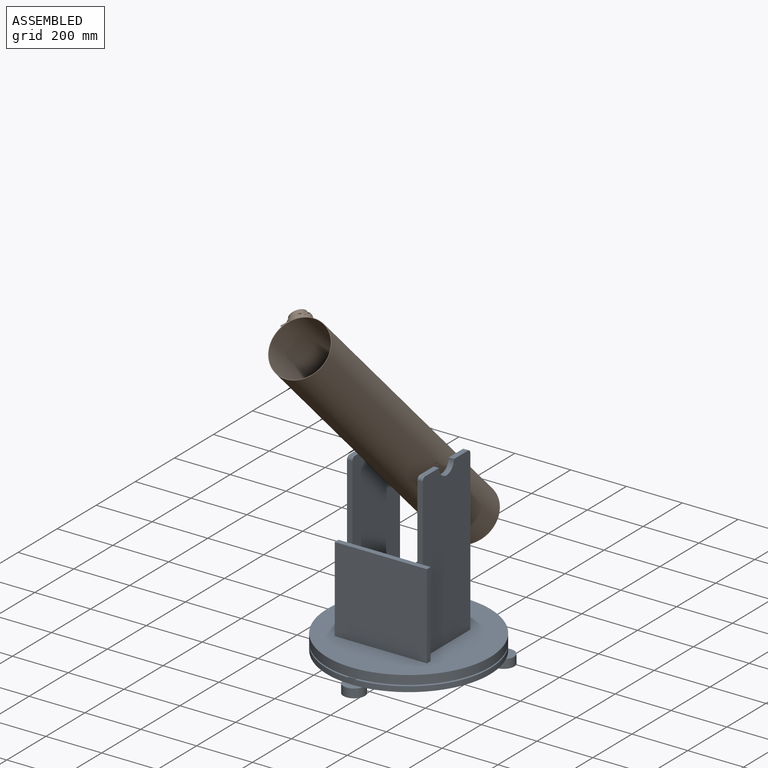
[diagram: assembled view]
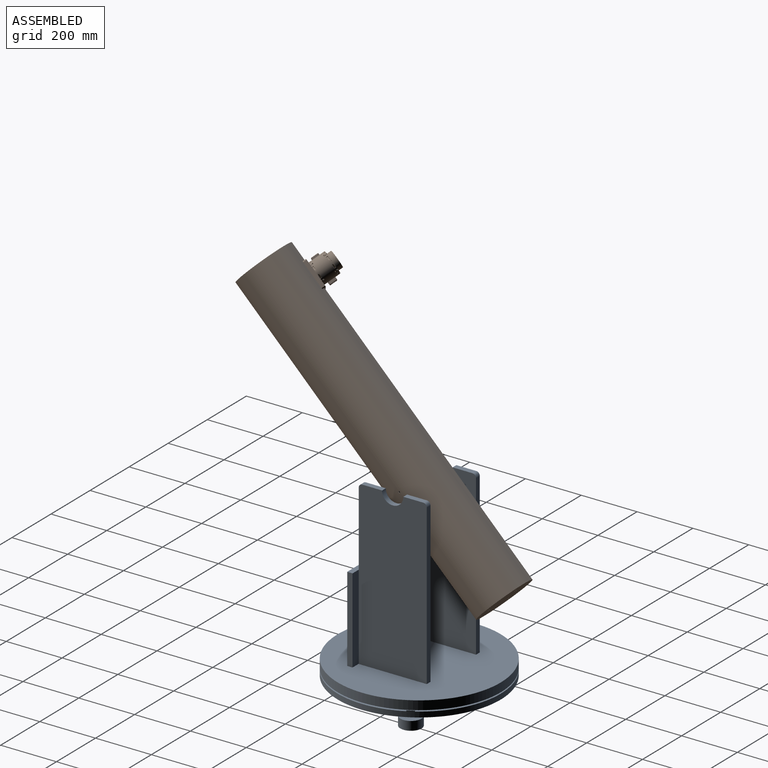
[diagram: assembled view, second angle]
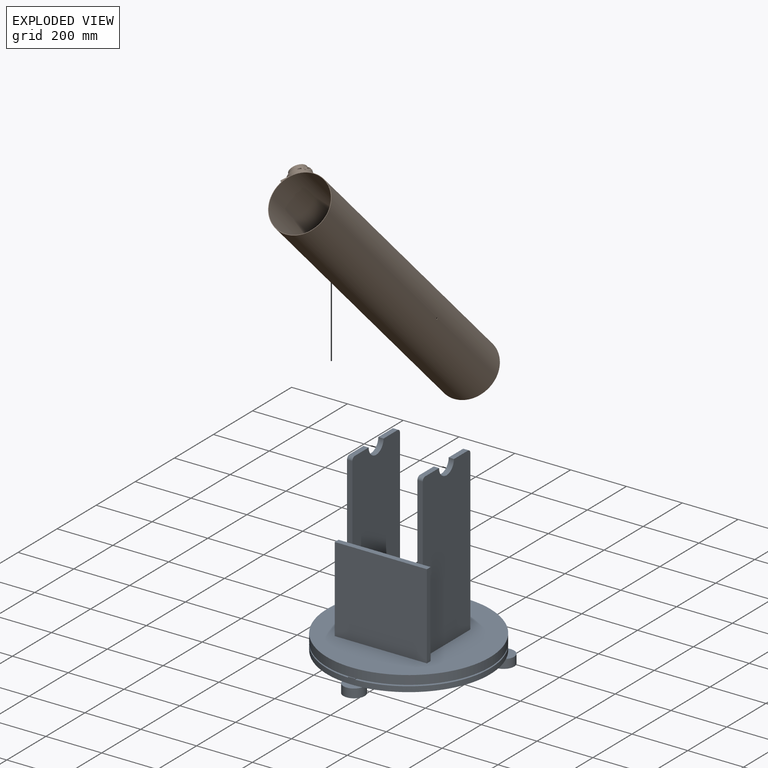
[diagram: exploded view]
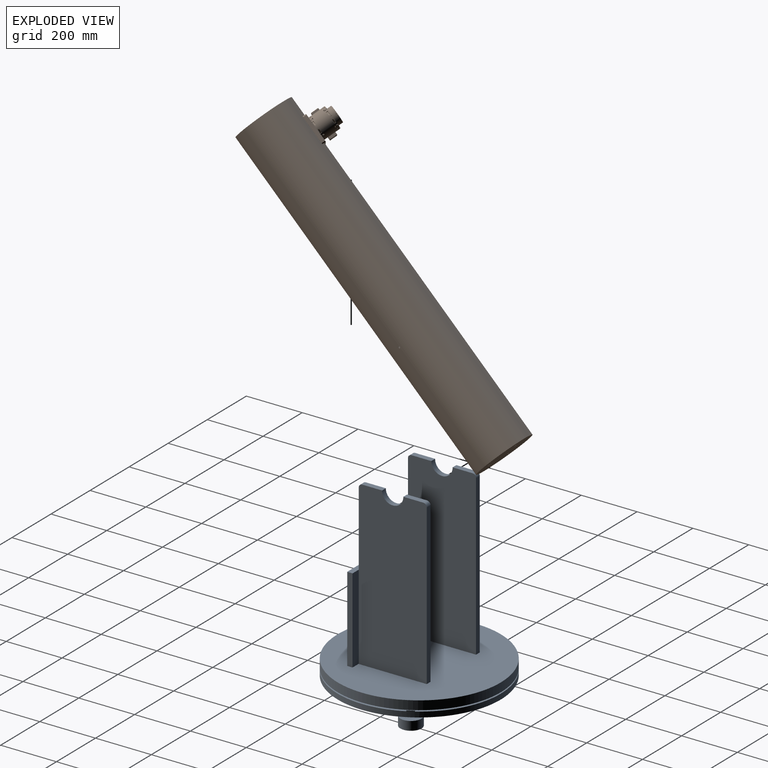
[diagram: exploded view, second angle]
FCSTD DOCUMENT  (FreeCAD 1.0R39109 (Git))
Label: SMAS_DOB_6inch
License: All rights reserved
LicenseURL: http://en.wikipedia.org/wiki/All_rights_reserved
objects: Sketcher::SketchObject×12, PartDesign::Pad×10, Part::Feature×10, PartDesign::Body×9, App::Part×3, PartDesign::Pocket×2, App::Link×2, Spreadsheet::Sheet×1, App::FeaturePython×1, Assembly::JointGroup×1, Assembly::AssemblyObject×1, PartDesign::Fillet×1, PartDesign::FeatureBase×1
note: 84 computed .brp shape members not serialized (recipe doc carries the construction recipe); baked Part::Feature solids carry a one-line shape summary decoded from their .brp

FEATURE [Sketcher::SketchObject] Sketch
  ArcFitTolerance = 1e-06
  AttachmentSupport = -> [XY_Plane001]
  FullyConstrained = true
  MakeInternals = false
  MapMode = 5
  expr: Constraints[2] = <<Spreadsheet_OTA_Dob>>.OD
  expr: Constraints[3] = <<Spreadsheet_OTA_Dob>>.ID
  sketch-geometry (2):
    g0: Circle CenterX=0 CenterY=0 CenterZ=0 NormalX=0 NormalY=0 NormalZ=1 AngleXU=0 Radius=101.6
    g1: Circle CenterX=0 CenterY=0 CenterZ=0 NormalX=0 NormalY=0 NormalZ=1 AngleXU=0 Radius=100.012
  constraints (4):
    c: Coincident(g0,g-1)
    c: Coincident(g1,g0)
    c: Diameter(g0) = 203.2
    c: Diameter(g1) = 200.025
FEATURE [PartDesign::Pad] Pad  label="Pad_Tube"
  Direction = (0,0,1)
  Length = 1219.2
  Length2 = 10
  Profile = -> Sketch
  ReferenceAxis = -> Sketch [N_Axis]
  Suppressed = false
  Type = 0
  expr: Length = <<Spreadsheet_OTA_Dob>>.Length
FEATURE [Spreadsheet::Sheet] Spreadsheet  label="Spreadsheet_OTA_Dob"
  cells = A2='Optical Tube Assembly; E2='Base Assembly; A3='See:  https://stellafane.org/tm/dob/mount/rockerbox.html; A5='Length; B5(Length)==48 "; E5='GroundBoardDiameter; F5(GroundBoardDiameter)==23 "; A6='OD; B6(OD)==8 "; E6='GroundBoardThickness; F6(GroundBoardThickness)==0.75 "; A7='TubeThickness; B7(TubeThickness)==0.125 "; E7='FeetDiamter; F7(FeetDiamter)==3 "; A8='ID; B8(ID)==B6 - B7; E8='FeetThickness; F8(FeetThickness)==1.25 "; A9='LengthToPiviot; B9(LengthToPiviot)==17 "; E9='FeetCircleDiamater; F9(FeetCircleDiamater)==F5 - 1 "; A10='PivotHoleDiameter; B10(PivotHoleDiameter)==0.25 "; A12='MirrorTailgateThickness; B12(MirrorTailgateThickness)==0.75 "; A13='MirrorTailgateHole; B13(MirrorTailgateHole)==0.375 "; A14='MirrorCellThickness; B14(MirrorCellThickness)==0.75 "; E15='CenterHoleDiameter; F15(CenterHoleDiameter)==0.5 "; A16='Mirror Diameter; B16(Mirror_Diameter)==6 "; A17='MirrorThickness; B17(MirrorThickness)==0.75 "; E17='RockerSideHeight; F17(RockerSideHeight)==23 "; G17='guess to clear 17"; E18='RockerSideWidth; F18(RockerSideWidth)==1.2 * B6; G18='120% tube diamater; A19='CellMountDiameter; B19(CellMountDiameter)==0.75 * B16; C19='75% mirror diameter; E19='RockerSideThickness; F19(RockerSideThickness)==0.75 "; A20='CellMountHoleDiameter; B20(CellMountHoleDiameter)==0.25 "; E20='AltitudeBeringCradelDiamter; F20(AltitudeBeringCradelDiamter)==1.5 "; A21='CellScrewDiamter; B21(CellScrewDiamter)==0.25 "; A22='CellScrewHeadDiameter; B22(CellScrewHeadDiameter)==0.5 "; E22='RockerBottomDiamter; F22(RockerBottomDiamter)==F5; G22='Same as ground board.; A23='CellScrewHeadPocketDepth; B23(CellScrewHeadPocketDepth)==0.125 "; E23='RockerBottomThickness; F23(RockerBottomThickness)==F8; E25='RockerBoxFrontHeight; F25(RockerBoxFrontHeight)==12 "; E26='RockerBoxFrontWidth; F26(RockerBoxFrontWidth)==13 "; E27='RockerBoxFrontThickness; F27(RockerBoxFrontThickness)==F6
FEATURE [Sketcher::SketchObject] Sketch001
  ArcFitTolerance = 1e-06
  AttachmentSupport = -> [XY_Plane002]
  FullyConstrained = true
  MakeInternals = false
  MapMode = 5
  expr: Constraints[12] = <<Spreadsheet_OTA_Dob>>.CellMountDiameter
  expr: Constraints[16] = <<Spreadsheet_OTA_Dob>>.MirrorTailgateHole
  expr: Constraints[1] = <<Spreadsheet_OTA_Dob>>.ID
  sketch-geometry (8):
    g0: Circle CenterX=0 CenterY=0 CenterZ=0 NormalX=0 NormalY=0 NormalZ=1 AngleXU=0 Radius=100.012
    g1: LineSegment [constr] StartX=49.4934 StartY=-28.575 StartZ=0 EndX=-7.1e-15 EndY=57.15 EndZ=0
    g2: LineSegment [constr] StartX=-7.1e-15 StartY=57.15 StartZ=0 EndX=-49.4934 EndY=-28.575 EndZ=0
    g3: LineSegment [constr] StartX=-49.4934 StartY=-28.575 StartZ=0 EndX=49.4934 EndY=-28.575 EndZ=0
    g4: Circle [constr] CenterX=0 CenterY=0 CenterZ=0 NormalX=0 NormalY=0 NormalZ=1 AngleXU=0 Radius=57.15
    g5: Circle CenterX=-7.1e-15 CenterY=57.15 CenterZ=0 NormalX=0 NormalY=0 NormalZ=1 AngleXU=0 Radius=4.7625
    g6: Circle CenterX=-49.4934 CenterY=-28.575 CenterZ=0 NormalX=0 NormalY=0 NormalZ=1 AngleXU=0 Radius=4.7625
    g7: Circle CenterX=49.4934 CenterY=-28.575 CenterZ=0 NormalX=0 NormalY=0 NormalZ=1 AngleXU=0 Radius=4.7625
  constraints (19):
    c: Coincident(g0,g-1)
    c: Diameter(g0) = 200.025
    c: Coincident(g1,g2)
    c: Coincident(g2,g3)
    c: Coincident(g3,g1)
    c: Equal(g1,g2)
    c: Equal(g1,g3)
    c: PointOnObject(g1,g4)
    c: PointOnObject(g2,g4)
    c: PointOnObject(g3,g4)
    c: Coincident(g4,g0)
    c: Horizontal(g3)
    c: Diameter(g4) = 114.3
    c: Coincident(g5,g1)
    c: Coincident(g6,g2)
    c: Coincident(g7,g1)
    c: Diameter(g5) = 9.525
    c: Equal(g6,g7)
    c: Equal(g7,g5)
FEATURE [PartDesign::Pad] Pad001  label="Pad_MirrorTailgate"
  Direction = (0,0,1)
  Length = 19.05
  Length2 = 10
  Profile = -> Sketch001
  ReferenceAxis = -> Sketch001 [N_Axis]
  Suppressed = false
  Type = 0
  expr: Length = <<Spreadsheet_OTA_Dob>>.MirrorTailgateThickness
FEATURE [PartDesign::Body] Body001  label="Body_MirrorTailgate"
  AllowCompound = false
  Group = -> [Sketch001,Pad001]
  Origin = -> Origin002
  Tip = -> Pad001
FEATURE [Part::Feature] Part__Feature  label="Cso"
  Placement = pos=(26.5902,26.5142,58.6525) rot=(0,0,1;0rad)
  shape: bbox 60 x 75 x 60 mm, 10 faces (baked)
FEATURE [Part::Feature] Part__Feature001  label="Haz"
  Placement = pos=(26.5902,24.9363,58.6525) rot=(0,0,1;0rad)
  shape: bbox 82.85 x 60 x 85.71 mm, 92 faces (baked)
FEATURE [Part::Feature] Part__Feature002  label="radial ball bearing_68_din_DIN 625 - 638_5 - 10,SI,NC,10_68"
  Placement = pos=(51.6925,79.4363,83.7548) rot=(0.226947,0.805172,0.547899;3.78542rad)
  shape: bbox 11.24 x 11.08 x 11.24 mm, 28 faces (baked)
FEATURE [Part::Feature] Part__Feature003  label="radial ball bearing_68_din_DIN 625 - 638_5 - 10,SI,NC,10_069"
  Placement = pos=(51.6925,28.4363,83.7548) rot=(-0.20924,0.837282,-0.505151;3.80926rad)
  shape: bbox 11.45 x 11.37 x 11.45 mm, 28 faces (baked)
FEATURE [Part::Feature] Part__Feature004  label="radial ball bearing_68_din_DIN 625 - 638_5 - 10,SI,NC,10_070"
  Placement = pos=(51.6925,79.4363,33.5502) rot=(0.826176,-0.447574,0.342213;1.49341rad)
  shape: bbox 11.53 x 11.49 x 11.53 mm, 28 faces (baked)
FEATURE [Part::Feature] Part__Feature005  label="radial ball bearing_68_din_DIN 625 - 638_5 - 10,SI,NC,10_071"
  Placement = pos=(51.6925,28.4363,33.5502) rot=(0,-1,0;0.785398rad)
  shape: bbox 11.83 x 11.91 x 11.83 mm, 28 faces (baked)
FEATURE [Part::Feature] Part__Feature006  label="tengely_haz"
  Placement = pos=(-4.60977,54.9363,58.6525) rot=(-1,0,0;1.5708rad)
  shape: bbox 29 x 26 x 97 mm, 86 faces (baked)
FEATURE [Part::Feature] Part__Feature007  label="szorito"
  Placement = pos=(-17.1098,54.9363,58.6525) rot=(0.57735,0.57735,-0.57735;2.0944rad)
  shape: bbox 11.18 x 15 x 26 mm, 17 faces (baked)
FEATURE [Part::Feature] Part__Feature008  label="radial ball bearing_68_din_DIN 625 - 624 - 8,SI,NC,8_68"
  Placement = pos=(-4.60977,54.9363,94.6525) rot=(0.261628,-0.929033,0.261628;1.64434rad)
  shape: bbox 13.68 x 13.68 x 5 mm, 28 faces (baked)
FEATURE [Part::Feature] Part__Feature009  label="talp"
  Placement = pos=(26.5902,12.3481,8.65252) rot=(1,0,0;1.5708rad)
  shape: bbox 100 x 12.59 x 100 mm, 52 faces (baked)
FEATURE [App::Part] Newton_telescope_focuser
  Group = -> [Part__Feature,Part__Feature001,Part__Feature002,Part__Feature003,Part__Feature004,Part__Feature005,Part__Feature006,Part__Feature007,Part__Feature008,Part__Feature009]
  Origin = -> Origin003
  Placement = pos=(-75.158,37.4809,1043.69) rot=(0,0,1;0.785398rad)
FEATURE [Sketcher::SketchObject] Sketch002
  ArcFitTolerance = 1e-06
  AttachmentSupport = -> [XY_Plane004]
  FullyConstrained = true
  MakeInternals = false
  MapMode = 5
  expr: Constraints[1] = <<Spreadsheet_OTA_Dob>>.Mirror_Diameter
  sketch-geometry (1):
    g0: Circle CenterX=0 CenterY=0 CenterZ=0 NormalX=0 NormalY=0 NormalZ=1 AngleXU=0 Radius=76.2
  constraints (2):
    c: Coincident(g0,g-1)
    c: Diameter(g0) = 152.4
FEATURE [PartDesign::Pad] Pad002
  Direction = (0,0,1)
  Length = 19.05
  Length2 = 10
  Profile = -> Sketch002
  ReferenceAxis = -> Sketch002 [N_Axis]
  Suppressed = false
  Type = 0
  expr: Length = <<Spreadsheet_OTA_Dob>>.MirrorThickness
FEATURE [PartDesign::Body] Body002  label="Body_Mirror"
  AllowCompound = false
  Group = -> [Sketch002,Pad002]
  Origin = -> Origin004
  Placement = pos=(0,0,63.246) rot=(0,0,1;0rad)
  Tip = -> Pad002
FEATURE [Sketcher::SketchObject] Sketch003
  ArcFitTolerance = 1e-06
  AttachmentSupport = -> [XY_Plane006]
  FullyConstrained = true
  MakeInternals = false
  MapMode = 5
  expr: Constraints[1] = <<Spreadsheet_OTA_Dob>>.GroundBoardDiameter
  expr: Constraints[3] = <<Spreadsheet_OTA_Dob>>.CenterHoleDiameter
  sketch-geometry (2):
    g0: Circle CenterX=0 CenterY=0 CenterZ=0 NormalX=0 NormalY=0 NormalZ=1 AngleXU=0 Radius=292.1
    g1: Circle CenterX=0 CenterY=0 CenterZ=0 NormalX=0 NormalY=0 NormalZ=1 AngleXU=0 Radius=6.35
  constraints (4):
    c: Coincident(g0,g-1)
    c: Diameter(g0) = 584.2
    c: Coincident(g1,g0)
    c: Diameter(g1) = 12.7
FEATURE [PartDesign::Pad] Pad003  label="PadGroundBoard"
  Direction = (0,0,1)
  Length = 19.05
  Length2 = 10
  Profile = -> Sketch003
  ReferenceAxis = -> Sketch003 [N_Axis]
  Suppressed = false
  Type = 0
  expr: Length = <<Spreadsheet_OTA_Dob>>.GroundBoardThickness
FEATURE [Sketcher::SketchObject] Sketch004
  ArcFitTolerance = 1e-06
  AttachmentSupport = -> [Pad003]
  FullyConstrained = true
  MakeInternals = false
  MapMode = 5
  Placement = pos=(0,0,0) rot=(1,0,0;3.14159rad)
  expr: Constraints[14] = <<Spreadsheet_OTA_Dob>>.FeetDiamter
  expr: Constraints[9] = Spreadsheet.FeetCircleDiamater
  sketch-geometry (7):
    g0: LineSegment [constr] StartX=-241.967 StartY=-139.7 StartZ=0 EndX=241.967 EndY=-139.7 EndZ=0
    g1: LineSegment [constr] StartX=241.967 StartY=-139.7 StartZ=0 EndX=0 EndY=279.4 EndZ=0
    g2: LineSegment [constr] StartX=0 StartY=279.4 StartZ=0 EndX=-241.967 EndY=-139.7 EndZ=0
    g3: Circle [constr] CenterX=0 CenterY=0 CenterZ=0 NormalX=0 NormalY=0 NormalZ=1 AngleXU=0 Radius=279.4
    g4: Circle CenterX=0 CenterY=279.4 CenterZ=0 NormalX=0 NormalY=0 NormalZ=1 AngleXU=0 Radius=38.1
    g5: Circle CenterX=241.967 CenterY=-139.7 CenterZ=0 NormalX=0 NormalY=0 NormalZ=1 AngleXU=0 Radius=38.1
    g6: Circle CenterX=-241.967 CenterY=-139.7 CenterZ=0 NormalX=0 NormalY=0 NormalZ=1 AngleXU=0 Radius=38.1
  constraints (17):
    c: Coincident(g0,g1)
    c: Coincident(g1,g2)
    c: Coincident(g2,g0)
    c: Equal(g0,g1)
    c: Equal(g0,g2)
    c: PointOnObject(g0,g3)
    c: PointOnObject(g1,g3)
    c: PointOnObject(g2,g3)
    c: Coincident(g3,g-1)
    c: Diameter(g3) = 558.8
    c: Horizontal(g0)
    c: Coincident(g4,g1)
    c: Coincident(g5,g0)
    c: Coincident(g6,g0)
    c: Diameter(g4) = 76.2
    c: Equal(g4,g6)
    c: Equal(g6,g5)
FEATURE [PartDesign::Pad] Pad004  label="PadFeet"
  BaseFeature = -> Pad003
  Direction = (0,0,-1)
  Length = 31.75
  Length2 = 10
  Profile = -> Sketch004
  ReferenceAxis = -> Sketch004 [N_Axis]
  Suppressed = false
  Type = 0
  expr: Length = <<Spreadsheet_OTA_Dob>>.FeetThickness
FEATURE [Sketcher::SketchObject] Sketch005
  ArcFitTolerance = 1e-06
  AttachmentSupport = -> [Pad004]
  FullyConstrained = true
  MakeInternals = false
  MapMode = 5
  Placement = pos=(0,0,19.05) rot=(0,0,1;0rad)
  expr: Constraints[52] = <<Spreadsheet_OTA_Dob>>.FeetCircleDiamater
  sketch-geometry (19):
    g0: LineSegment [constr] StartX=241.967 StartY=139.7 StartZ=0 EndX=-241.967 EndY=139.7 EndZ=0
    g1: LineSegment [constr] StartX=-241.967 StartY=139.7 StartZ=0 EndX=-2.84e-14 EndY=-279.4 EndZ=0
    g2: LineSegment [constr] StartX=-3.84e-14 StartY=-279.4 StartZ=0 EndX=241.967 EndY=139.7 EndZ=0
    g3: Circle [constr] CenterX=0 CenterY=0 CenterZ=0 NormalX=0 NormalY=0 NormalZ=1 AngleXU=0 Radius=279.4
    g4: LineSegment StartX=-237.319 StartY=122.351 StartZ=0 EndX=-224.619 EndY=144.349 EndZ=0
    g5: LineSegment StartX=-224.619 StartY=144.349 StartZ=0 EndX=-246.616 EndY=157.049 EndZ=0
    g6: LineSegment StartX=-246.616 StartY=157.049 StartZ=0 EndX=-259.316 EndY=135.051 EndZ=0
    g7: LineSegment StartX=-259.316 StartY=135.051 StartZ=0 EndX=-237.319 EndY=122.351 EndZ=0
    g8: Circle [constr] CenterX=-241.967 CenterY=139.7 CenterZ=0 NormalX=0 NormalY=0 NormalZ=1 AngleXU=0 Radius=17.9605
    g9: LineSegment StartX=237.319 StartY=122.351 StartZ=0 EndX=259.316 EndY=135.051 EndZ=0
    g10: LineSegment StartX=259.316 StartY=135.051 StartZ=0 EndX=246.616 EndY=157.049 EndZ=0
    g11: LineSegment StartX=246.616 StartY=157.049 StartZ=0 EndX=224.619 EndY=144.349 EndZ=0
    g12: LineSegment StartX=224.619 StartY=144.349 StartZ=0 EndX=237.319 EndY=122.351 EndZ=0
    g13: Circle [constr] CenterX=241.967 CenterY=139.7 CenterZ=0 NormalX=0 NormalY=0 NormalZ=1 AngleXU=0 Radius=17.9605
    g14: LineSegment StartX=12.7 StartY=-292.1 StartZ=0 EndX=12.7 EndY=-266.7 EndZ=0
    g15: LineSegment StartX=12.7 StartY=-266.7 StartZ=0 EndX=-12.7 EndY=-266.7 EndZ=0
    g16: LineSegment StartX=-12.7 StartY=-266.7 StartZ=0 EndX=-12.7 EndY=-292.1 EndZ=0
    g17: LineSegment StartX=-12.7 StartY=-292.1 StartZ=0 EndX=12.7 EndY=-292.1 EndZ=0
    g18: Circle [constr] CenterX=-3.84e-14 CenterY=-279.4 CenterZ=0 NormalX=0 NormalY=0 NormalZ=1 AngleXU=0 Radius=17.9605
  constraints (53):
    c: Coincident(g0,g1)
    c: Coincident(g1,g2)
    c: Coincident(g2,g0)
    c: Equal(g0,g1)
    c: Equal(g0,g2)
    c: PointOnObject(g0,g3)
    c: PointOnObject(g1,g3)
    c: PointOnObject(g2,g3)
    c: Coincident(g3,g-1)
    c: Horizontal(g0)
    c: Coincident(g4,g5)
    c: Coincident(g5,g6)
    c: Coincident(g6,g7)
    c: Coincident(g7,g4)
    c: Equal(g4,g5)
    c: Equal(g4,g6)
    c: Equal(g4,g7)
    c: PointOnObject(g4,g8)
    c: PointOnObject(g5,g8)
    c: PointOnObject(g6,g8)
    c: PointOnObject(g7,g8)
    c: Coincident(g8,g0)
    c: Coincident(g9,g10)
    c: Coincident(g10,g11)
    c: Coincident(g11,g12)
    c: Coincident(g12,g9)
    c: Equal(g9,g10)
    c: Equal(g9,g11)
    c: Equal(g9,g12)
    c: PointOnObject(g9,g13)
    c: PointOnObject(g10,g13)
    c: PointOnObject(g11,g13)
    c: PointOnObject(g12,g13)
    c: Coincident(g13,g0)
    c: Coincident(g14,g15)
    c: Coincident(g15,g16)
    c: Coincident(g16,g17)
    c: Coincident(g17,g14)
    c: Equal(g14,g15)
    c: Equal(g14,g16)
    c: Equal(g14,g17)
    c: PointOnObject(g14,g18)
    c: PointOnObject(g15,g18)
    c: PointOnObject(g16,g18)
    c: PointOnObject(g17,g18)
    c: Coincident(g18,g1)
    c: Horizontal(g15)
    c: Angle(g12) = -1.0472
    c: Angle(g4) = 1.0472
    c: Equal(g6,g10)
    c: Equal(g10,g17)
    c: DistanceX(g17,g17) = 25.4
    c: Diameter(g3) = 558.8
FEATURE [PartDesign::Pad] Pad005  label="PadTeflonFeet"
  BaseFeature = -> Pad004
  Direction = (0,0,1)
  Length = 3.175
  Length2 = 10
  Profile = -> Sketch005
  ReferenceAxis = -> Sketch005 [N_Axis]
  Suppressed = false
  Type = 0
FEATURE [PartDesign::Body] Body003  label="Body_GroundBoard"
  AllowCompound = false
  Group = -> [Sketch003,Pad003,Sketch004,Pad004,Sketch005,Pad005]
  Origin = -> Origin006
  Tip = -> Pad005
FEATURE [Sketcher::SketchObject] Sketch006
  ArcFitTolerance = 1e-06
  AttachmentSupport = -> [XY_Plane007]
  FullyConstrained = true
  MakeInternals = false
  MapMode = 5
  expr: Constraints[1] = <<Spreadsheet_OTA_Dob>>.RockerBottomDiamter
  expr: Constraints[3] = <<Spreadsheet_OTA_Dob>>.CenterHoleDiameter
  sketch-geometry (2):
    g0: Circle CenterX=0 CenterY=0 CenterZ=0 NormalX=0 NormalY=0 NormalZ=1 AngleXU=0 Radius=292.1
    g1: Circle CenterX=0 CenterY=0 CenterZ=0 NormalX=0 NormalY=0 NormalZ=1 AngleXU=0 Radius=6.35
  constraints (4):
    c: Coincident(g0,g-1)
    c: Diameter(g0) = 584.2
    c: Coincident(g1,g0)
    c: Diameter(g1) = 12.7
FEATURE [PartDesign::Pad] Pad006  label="Pad_RockerBottom"
  Direction = (0,0,1)
  Length = 31.75
  Length2 = 10
  Profile = -> Sketch006
  ReferenceAxis = -> Sketch006 [N_Axis]
  Suppressed = false
  Type = 0
  expr: Length = <<Spreadsheet_OTA_Dob>>.RockerBottomThickness
FEATURE [PartDesign::Body] Body004  label="Body_RockerBottom"
  AllowCompound = false
  Group = -> [Sketch006,Pad006]
  Origin = -> Origin007
  Placement = pos=(0,0,23.622) rot=(0,0,1;0rad)
  Tip = -> Pad006
FEATURE [Sketcher::SketchObject] Sketch007
  ArcFitTolerance = 1e-06
  AttachmentSupport = -> [YZ_Plane008]
  FullyConstrained = false
  MakeInternals = false
  MapMode = 5
  Placement = pos=(0,0,0) rot=(0.57735,0.57735,0.57735;2.0944rad)
  expr: Constraints[14] = <<Spreadsheet_OTA_Dob>>.RockerSideHeight
  expr: Constraints[15] = <<Spreadsheet_OTA_Dob>>.RockerSideWidth
  expr: Constraints[16] = <<Spreadsheet_OTA_Dob>>.AltitudeBeringCradelDiamter
  sketch-geometry (6):
    g0: LineSegment StartX=-121.92 StartY=563.165 StartZ=0 EndX=-121.92 EndY=-21.0347 EndZ=0
    g1: LineSegment StartX=-121.92 StartY=-21.0347 StartZ=0 EndX=121.92 EndY=-21.0347 EndZ=0
    g2: LineSegment StartX=121.92 StartY=-21.0347 StartZ=0 EndX=121.92 EndY=563.165 EndZ=0
    g3: LineSegment StartX=121.92 StartY=563.165 StartZ=0 EndX=38.1 EndY=563.165 EndZ=0
    g4: ArcOfCircle CenterX=-1.7e-15 CenterY=563.165 CenterZ=0 NormalX=0 NormalY=0 NormalZ=1 AngleXU=0 Radius=38.1 StartAngle=3.14159 EndAngle=6.28319
    g5: LineSegment StartX=-38.1 StartY=563.165 StartZ=0 EndX=-121.92 EndY=563.165 EndZ=0
  constraints (17):
    c: Coincident(g0,g1)
    c: Coincident(g1,g2)
    c: Coincident(g2,g3)
    c: Coincident(g5,g0)
    c: Vertical(g0)
    c: Vertical(g2)
    c: Horizontal(g1)
    c: Symmetric(g2,g0,g-2)
    c: Symmetric(g3,g5,g4)
    c: PointOnObject(g4,g5)
    c: Coincident(g3,g4)
    c: PointOnObject(g5,g4)
    c: Equal(g5,g3)
    c: Horizontal(g5)
    c: DistanceY(g0,g0) = 584.2
    c: DistanceX(g1,g1) = 243.84
    c: Radius(g4) = 38.1
FEATURE [PartDesign::Pad] Pad007
  Direction = (1,0,0)
  Length = 19.05
  Length2 = 10
  Placement = pos=(0,0,0) rot=(1,1,1;2.0944rad)
  Profile = -> Sketch007
  ReferenceAxis = -> Sketch007 [N_Axis]
  Suppressed = false
  Type = 0
  expr: Length = <<Spreadsheet_OTA_Dob>>.RockerSideThickness
FEATURE [Sketcher::SketchObject] Sketch008
  ArcFitTolerance = 1e-06
  AttachmentSupport = -> [XZ_Plane010]
  FullyConstrained = false
  MakeInternals = false
  MapMode = 5
  Placement = pos=(0,0,0) rot=(1,0,0;1.5708rad)
  expr: Constraints[7] = <<Spreadsheet_OTA_Dob>>.RockerBoxFrontHeight
  expr: Constraints[8] = <<Spreadsheet_OTA_Dob>>.RockerBoxFrontWidth
  sketch-geometry (4):
    g0: LineSegment StartX=-165.1 StartY=369.173 StartZ=0 EndX=-165.1 EndY=64.3727 EndZ=0
    g1: LineSegment StartX=-165.1 StartY=64.3727 StartZ=0 EndX=165.1 EndY=64.3727 EndZ=0
    g2: LineSegment StartX=165.1 StartY=64.3727 StartZ=0 EndX=165.1 EndY=369.173 EndZ=0
    g3: LineSegment StartX=165.1 StartY=369.173 StartZ=0 EndX=-165.1 EndY=369.173 EndZ=0
  constraints (10):
    c: Coincident(g0,g1)
    c: Coincident(g1,g2)
    c: Coincident(g2,g3)
    c: Coincident(g3,g0)
    c: Vertical(g0)
    c: Vertical(g2)
    c: Horizontal(g1)
    c: DistanceY(g0,g0) = 304.8
    c: DistanceX(g3,g3) = 330.2
    c: Symmetric(g0,g2,g-2)
FEATURE [PartDesign::Pad] Pad008
  Direction = (0,-1,2e-16)
  Length = 19.05
  Length2 = 10
  Placement = pos=(0,0,0) rot=(1,0,0;1.5708rad)
  Profile = -> Sketch008
  ReferenceAxis = -> Sketch008 [N_Axis]
  Suppressed = false
  Type = 0
  expr: Length = <<Spreadsheet_OTA_Dob>>.RockerBoxFrontThickness
FEATURE [PartDesign::Body] Body007  label="Body_RockerBoxFront"
  AllowCompound = false
  Group = -> [Sketch008,Pad008]
  Origin = -> Origin010
  Placement = pos=(0,-123.444,-8.636) rot=(0,0,1;0rad)
  Tip = -> Pad008
FEATURE [Sketcher::SketchObject] Sketch009
  ArcFitTolerance = 1e-06
  AttachmentSupport = -> [YZ_Plane001]
  FullyConstrained = true
  MakeInternals = false
  MapMode = 5
  Placement = pos=(0,0,0) rot=(0.57735,0.57735,0.57735;2.0944rad)
  expr: Constraints[0] = <<Spreadsheet_OTA_Dob>>.LengthToPiviot
  expr: Constraints[2] = <<Spreadsheet_OTA_Dob>>.PivotHoleDiameter
  sketch-geometry (1):
    g0: Circle CenterX=0 CenterY=431.8 CenterZ=0 NormalX=0 NormalY=0 NormalZ=1 AngleXU=0 Radius=3.175
  constraints (3):
    c: DistanceY(g-1,g0) = 431.8
    c: Vertical(g0,g-1)
    c: Diameter(g0) = 6.35
FEATURE [PartDesign::Pocket] Pocket  label="Pocket_PivotHole"
  BaseFeature = -> Pad
  Direction = (-1,0,0)
  Length = 5
  Length2 = 5
  Midplane = true
  Profile = -> Sketch009
  ReferenceAxis = -> Sketch009 [N_Axis]
  Suppressed = false
  Type = 1
FEATURE [PartDesign::Body] Body  label="Body_Tube"
  AllowCompound = false
  Group = -> [Sketch,Pad,Sketch009,Pocket]
  Origin = -> Origin001
  Tip = -> Pocket
FEATURE [App::Link] Part_Base  label="Part_Base001"
  LinkedObject = -> Part001
FEATURE [App::FeaturePython] GroundedJoint  # Assembly grounded joint (typed FeaturePython)
  ObjectToGround = -> Part_Base
FEATURE [Assembly::JointGroup] Joints
  Group = -> [GroundedJoint]
FEATURE [App::Link] Part_OTA_Dob  label="Part_OTA_Dob001"
  LinkPlacement = pos=(0,304.774,326.947) rot=(1,0,0;0.785398rad)
  LinkedObject = -> Part
  Placement = pos=(0,304.774,326.947) rot=(1,0,0;0.785398rad)
FEATURE [Assembly::AssemblyObject] Assembly
  Group = -> [Joints,Part_Base,GroundedJoint,Part_OTA_Dob]
  Origin = -> Origin011
  Type = Assembly
FEATURE [Sketcher::SketchObject] Sketch010
  ArcFitTolerance = 1e-06
  AttachmentSupport = -> [XY_Plane012]
  FullyConstrained = true
  MakeInternals = false
  MapMode = 5
  expr: Constraints[0] = <<Spreadsheet_OTA_Dob>>.Mirror_Diameter
  expr: Constraints[12] = <<Spreadsheet_OTA_Dob>>.CellMountDiameter
  expr: Constraints[18] = <<Spreadsheet_OTA_Dob>>.CellScrewDiamter
  sketch-geometry (8):
    g0: Circle CenterX=0 CenterY=0 CenterZ=0 NormalX=0 NormalY=0 NormalZ=1 AngleXU=0 Radius=76.2
    g1: Circle CenterX=2.27729e-11 CenterY=57.15 CenterZ=0 NormalX=0 NormalY=0 NormalZ=1 AngleXU=0 Radius=3.175
    g2: Circle CenterX=49.4934 CenterY=-28.575 CenterZ=0 NormalX=0 NormalY=0 NormalZ=1 AngleXU=0 Radius=3.175
    g3: Circle CenterX=-49.4934 CenterY=-28.575 CenterZ=0 NormalX=0 NormalY=0 NormalZ=1 AngleXU=0 Radius=3.175
    g4: LineSegment [constr] StartX=49.4934 StartY=-28.575 StartZ=0 EndX=2.27729e-11 EndY=57.15 EndZ=0
    g5: LineSegment [constr] StartX=2.27729e-11 StartY=57.15 StartZ=0 EndX=-49.4934 EndY=-28.575 EndZ=0
    g6: LineSegment [constr] StartX=-49.4934 StartY=-28.575 StartZ=0 EndX=49.4934 EndY=-28.575 EndZ=0
    g7: Circle [constr] CenterX=0 CenterY=0 CenterZ=0 NormalX=0 NormalY=0 NormalZ=1 AngleXU=0 Radius=57.15
  constraints (19):
    c: Diameter(g0) = 152.4
    c: Coincident(g-1,g0)
    c: Coincident(g4,g5)
    c: Coincident(g5,g6)
    c: Coincident(g6,g4)
    c: Equal(g4,g5)
    c: Equal(g4,g6)
    c: PointOnObject(g4,g7)
    c: PointOnObject(g5,g7)
    c: PointOnObject(g6,g7)
    c: Coincident(g7,g0)
    c: Horizontal(g6)
    c: Diameter(g7) = 114.3
    c: Coincident(g1,g4)
    c: Coincident(g4,g2)
    c: Coincident(g5,g3)
    c: Equal(g3,g1)
    c: Equal(g1,g2)
    c: Diameter(g1) = 6.35
FEATURE [PartDesign::Pad] Pad009  label="PadMirroCell"
  Direction = (0,0,1)
  Length = 19.05
  Length2 = 10
  Profile = -> Sketch010
  ReferenceAxis = -> Sketch010 [N_Axis]
  Suppressed = false
  Type = 0
  expr: Length = <<Spreadsheet_OTA_Dob>>.MirrorCellThickness
FEATURE [Sketcher::SketchObject] Sketch011
  ArcFitTolerance = 1e-06
  AttachmentOffset = pos=(0,0,19.05) rot=(0,0,1;0rad)
  AttachmentSupport = -> [XY_Plane012]
  FullyConstrained = true
  MakeInternals = false
  MapMode = 5
  Placement = pos=(0,0,19.05) rot=(0,0,1;0rad)
  expr: .AttachmentOffset.Base.z = <<Spreadsheet_OTA_Dob>>.MirrorCellThickness
  expr: Constraints[19] = <<Spreadsheet_OTA_Dob>>.CellMountDiameter
  expr: Constraints[31] = <<Spreadsheet_OTA_Dob>>.CellScrewHeadDiameter
  sketch-geometry (13):
    g0: LineSegment [constr] StartX=49.4934 StartY=28.575 StartZ=0 EndX=-7.1e-15 EndY=57.15 EndZ=0
    g1: LineSegment [constr] StartX=-7.1e-15 StartY=57.15 StartZ=0 EndX=-49.4934 EndY=28.575 EndZ=0
    g2: LineSegment [constr] StartX=-49.4934 StartY=28.575 StartZ=0 EndX=-49.4934 EndY=-28.575 EndZ=0
    g3: LineSegment [constr] StartX=-49.4934 StartY=-28.575 StartZ=0 EndX=0 EndY=-57.15 EndZ=0
    g4: LineSegment [constr] StartX=0 StartY=-57.15 StartZ=0 EndX=49.4934 EndY=-28.575 EndZ=0
    g5: LineSegment [constr] StartX=49.4934 StartY=-28.575 StartZ=0 EndX=49.4934 EndY=28.575 EndZ=0
    g6: Circle [constr] CenterX=0 CenterY=0 CenterZ=0 NormalX=0 NormalY=0 NormalZ=1 AngleXU=0 Radius=57.15
    g7: Circle CenterX=-7.1e-15 CenterY=57.15 CenterZ=0 NormalX=0 NormalY=0 NormalZ=1 AngleXU=0 Radius=6.35
    g8: Circle CenterX=-49.4934 CenterY=28.575 CenterZ=0 NormalX=0 NormalY=0 NormalZ=1 AngleXU=0 Radius=6.35
    g9: Circle CenterX=-49.4934 CenterY=-28.575 CenterZ=0 NormalX=0 NormalY=0 NormalZ=1 AngleXU=0 Radius=6.35
    g10: Circle CenterX=0 CenterY=-57.15 CenterZ=0 NormalX=0 NormalY=0 NormalZ=1 AngleXU=0 Radius=6.35
    g11: Circle CenterX=49.4934 CenterY=-28.575 CenterZ=0 NormalX=0 NormalY=0 NormalZ=1 AngleXU=0 Radius=6.35
    g12: Circle CenterX=49.4934 CenterY=28.575 CenterZ=0 NormalX=0 NormalY=0 NormalZ=1 AngleXU=0 Radius=6.35
  constraints (28):
    c: Coincident(g0,g1)
    c: Coincident(g1,g2)
    c: Coincident(g2,g3)
    c: Coincident(g3,g4)
    c: Coincident(g4,g5)
    c: Coincident(g5,g0)
    c: Equal(g0, g1-g5) x5
    c: PointOnObject(g0,g6)
    c: PointOnObject(g1,g6)
    c: PointOnObject(g2,g6)
    c: PointOnObject(g3,g6)
    c: PointOnObject(g4,g6)
    c: PointOnObject(g5,g6)
    c: Coincident(g6,g-1)
    c: Vertical(g5)
    c: Diameter(g6) = 114.3
    c: Coincident(g7,g0)
    c: Coincident(g8,g1)
    c: Coincident(g9,g2)
    c: Coincident(g10,g3)
    c: Coincident(g11,g4)
    c: Coincident(g12,g0)
    c: Equal(g7,g8)
    c: Equal(g8,g9)
    c: Equal(g9,g10)
    c: Equal(g10,g11)
    c: Equal(g11,g12)
    c: Diameter(g7) = 12.7
FEATURE [PartDesign::Pocket] Pocket001  label="PocketScrew&Glue"
  BaseFeature = -> Pad009
  Direction = (0,0,-1)
  Length = 3.175
  Length2 = 5
  Profile = -> Sketch011
  ReferenceAxis = -> Sketch011 [N_Axis]
  Suppressed = false
  Type = 0
  expr: Length = <<Spreadsheet_OTA_Dob>>.CellScrewHeadPocketDepth
FEATURE [PartDesign::Body] Body008  label="BodyMirrorCell"
  AllowCompound = false
  Group = -> [Sketch010,Pad009,Sketch011,Pocket001]
  Origin = -> Origin012
  Placement = pos=(0,0,33.528) rot=(0,0,1;0rad)
  Tip = -> Pocket001
FEATURE [App::Part] Part  label="Part_OTA_Dob"
  Group = -> [Body,Body001,Body002,Newton_telescope_focuser,Body008]
  Origin = -> Origin
  Placement = pos=(0,0,64.008) rot=(0,0,1;0rad)
FEATURE [PartDesign::Fillet] Fillet
  Base = -> Pad007 [Edge1,Edge8]
  BaseFeature = -> Pad007
  Placement = pos=(0,0,0) rot=(1,1,1;2.0944rad)
  Radius = 12.7
  SupportTransform = false
  Suppressed = false
  UseAllEdges = false
FEATURE [PartDesign::Body] Body005  label="Body_BaseLeftSide"
  AllowCompound = false
  Group = -> [Sketch007,Pad007,Fillet]
  Origin = -> Origin008
  Placement = pos=(-135.636,0,76.454) rot=(0,0,1;0rad)
  Tip = -> Fillet
FEATURE [PartDesign::FeatureBase] Clone
  BaseFeature = -> Body005
  Placement = pos=(161.798,0,0) rot=(0,0,1;0rad)
  Suppressed = false
FEATURE [PartDesign::Body] Body006  label="Body_BaseRightSide"
  AllowCompound = false
  Group = -> [Clone]
  Origin = -> Origin009
  Placement = pos=(-45.212,0,77.47) rot=(0,0,1;0rad)
  Tip = -> Clone
FEATURE [App::Part] Part001  label="Part_Base"
  Group = -> [Body003,Body004,Body005,Body007,Body006]
  Origin = -> Origin005
